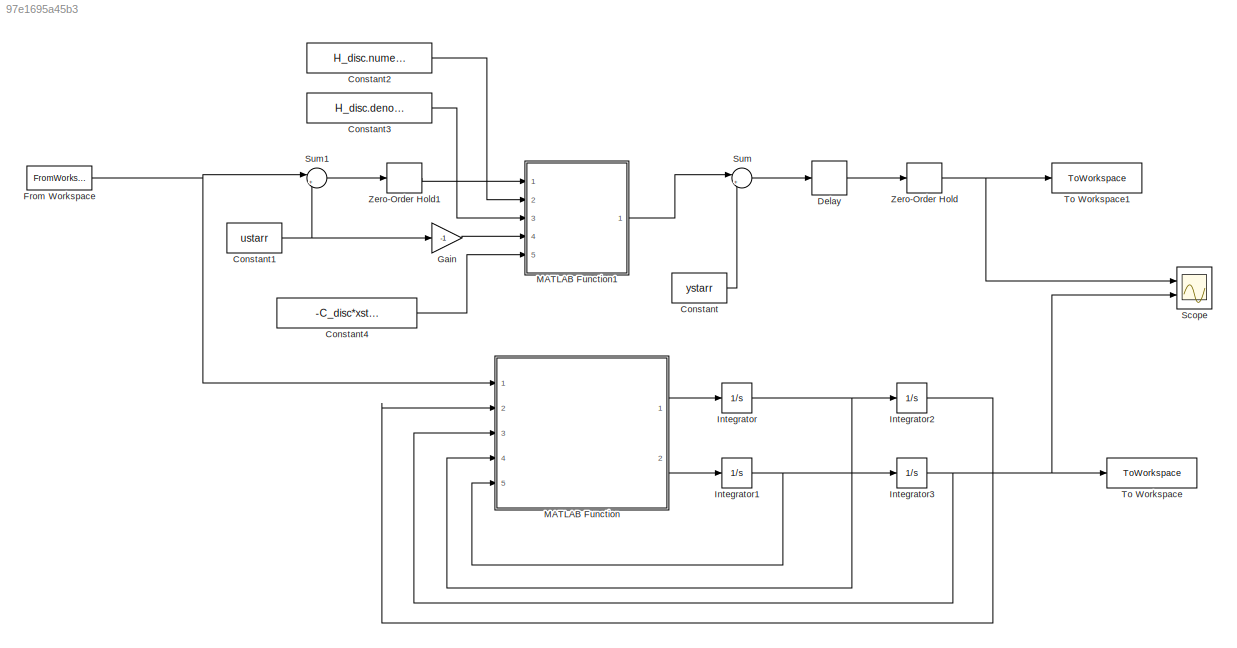
MODEL slx_97e1695a45b3
KIND model
CONFIG AbsTol = auto
CONFIG EnableMultiTasking = off
CONFIG FixedStep = auto
CONFIG MaxStep = auto
CONFIG MinStep = auto
CONFIG RelTol = 1e-3
CONFIG SampleTimeConstraint = Unconstrained
CONFIG SolverName = VariableStepAuto
CONFIG StartTime = 0.0
CONFIG StopTime = 100
BLOCK [Constant] Constant
  Value = ystarr
BLOCK [Constant] Constant1
  Value = ustarr
BLOCK [Constant] Constant2
  Value = H_disc.numerator{1,1}
BLOCK [Constant] Constant3
  Value = H_disc.denominator{1,1}
BLOCK [Constant] Constant4
  Value = -C_disc*xstarr-D_disc*ustarr
BLOCK [Delay] Delay
  DelayLength = 1
  InputPortMap = u0
  Ports = [1, 1]
  SampleTime = 0.09
BLOCK [FromWorkspace] From Workspace
  VariableName = usim
BLOCK [Gain] Gain
  Gain = -1
BLOCK [Integrator] Integrator
  Ports = [1, 1]
BLOCK [Integrator] Integrator1
  Ports = [1, 1]
BLOCK [Integrator] Integrator2
  Ports = [1, 1]
BLOCK [Integrator] Integrator3
  Ports = [1, 1]
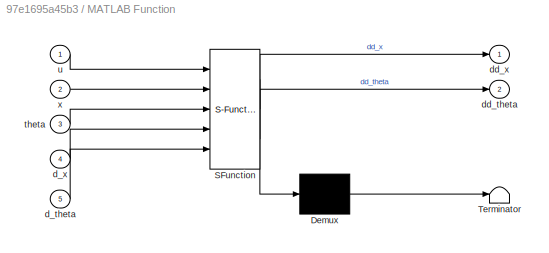
BLOCK [SubSystem] MATLAB Function
  ErrorFcn = Stateflow.Translate.translate
  PermitHierarchicalResolution = ExplicitOnly
  Ports = [5, 2]
  RequestExecContextInheritance = off
  SFBlockType = MATLAB Function
  TreatAsAtomicUnit = on
BLOCK [Demux] MATLAB Function/ Demux 
  Outputs = 1
  Ports = [1, 1]
BLOCK [S-Function] MATLAB Function/ SFunction 
  EnableBusSupport = on
  FunctionName = sf_sfun
  PortCounts = [5 3]
  Ports = [5, 3]
  SFcnIsStateOwnerBlock = off
  SFunctionDeploymentMode = off
  Tag = Stateflow S-Function 2
BLOCK [Terminator] MATLAB Function/ Terminator 
BLOCK [Inport] MATLAB Function/d_theta
  Port = 5
BLOCK [Inport] MATLAB Function/d_x
  Port = 4
BLOCK [Outport] MATLAB Function/dd_theta
  Port = 2
BLOCK [Outport] MATLAB Function/dd_x
BLOCK [Inport] MATLAB Function/theta
  Port = 3
BLOCK [Inport] MATLAB Function/u
BLOCK [Inport] MATLAB Function/x
  Port = 2
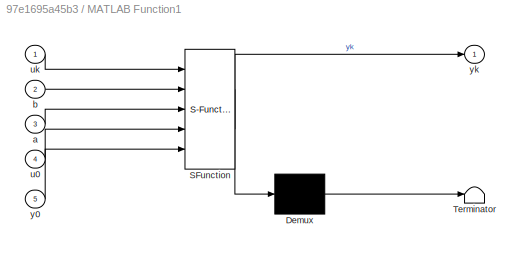
BLOCK [SubSystem] MATLAB Function1
  ErrorFcn = Stateflow.Translate.translate
  PermitHierarchicalResolution = ExplicitOnly
  Ports = [5, 1]
  RequestExecContextInheritance = off
  SFBlockType = MATLAB Function
  TreatAsAtomicUnit = on
BLOCK [Demux] MATLAB Function1/ Demux 
  Outputs = 1
  Ports = [1, 1]
BLOCK [S-Function] MATLAB Function1/ SFunction 
  EnableBusSupport = on
  FunctionName = sf_sfun
  PortCounts = [5 2]
  Ports = [5, 2]
  SFcnIsStateOwnerBlock = off
  SFunctionDeploymentMode = off
  Tag = Stateflow S-Function 1
BLOCK [Terminator] MATLAB Function1/ Terminator 
BLOCK [Inport] MATLAB Function1/a
  Port = 3
BLOCK [Inport] MATLAB Function1/b
  Port = 2
BLOCK [Inport] MATLAB Function1/u0
  Port = 4
BLOCK [Inport] MATLAB Function1/uk
BLOCK [Inport] MATLAB Function1/y0
  Port = 5
BLOCK [Outport] MATLAB Function1/yk
BLOCK [Scope] Scope
  Floating = off
  NumInputPorts = 2
  Ports = [2]
  ScopeSpecificationString = Simulink.scopes.TimeScopeBlockCfg('CurrentConfiguration', extmgr.ConfigurationSet(extmgr.Configuration('Core','General UI',true),extmgr.Configuration('Core','Source UI',true),extmgr.Configuration('Sources','WiredSimulink',true),extmgr.Configuration('Visuals','Time Domain',true,'SerializedDisplays',{struct('MinYLimReal','-0.00113','MaxYLimReal','0.00561','YLabelReal','','MinYLimMag','0.00000','MaxY...<+1395ch>
BLOCK [Sum] Sum
  Inputs = |++
  Ports = [2, 1]
BLOCK [Sum] Sum1
  Inputs = |+-
  Ports = [2, 1]
BLOCK [ToWorkspace] To Workspace
  FixptAsFi = on
  MaxDataPoints = inf
  Ports = [1]
  SampleTime = -1
  Save2DSignal = 2-D array (concatenate along first dimension)
  SaveFormat = Timeseries
  VariableName = y_nl
BLOCK [ToWorkspace] To Workspace1
  FixptAsFi = on
  MaxDataPoints = inf
  Ports = [1]
  SampleTime = -1
  Save2DSignal = 2-D array (concatenate along first dimension)
  SaveFormat = Timeseries
  VariableName = y_disc
BLOCK [ZeroOrderHold] Zero-Order Hold
  SampleTime = -1
BLOCK [ZeroOrderHold] Zero-Order Hold1
  SampleTime = -1
NET Constant1:1 -> Gain:1, Sum1:2
LINE Constant2:1 -> MATLAB Function1:2
LINE Constant3:1 -> MATLAB Function1:3
LINE Constant4:1 -> MATLAB Function1:5
LINE Constant:1 -> Sum:2
LINE Delay:1 -> Zero-Order Hold:1
NET From Workspace:1 -> MATLAB Function:1, Sum1:1
LINE Gain:1 -> MATLAB Function1:4
NET Integrator1:1 -> Integrator3:1, MATLAB Function:5
LINE Integrator2:1 -> MATLAB Function:2
NET Integrator3:1 -> MATLAB Function:3, Scope:2, To Workspace:1
NET Integrator:1 -> Integrator2:1, MATLAB Function:4
LINE MATLAB Function1:1 -> Sum:1
LINE MATLAB Function:1 -> Integrator:1
LINE MATLAB Function:2 -> Integrator1:1
LINE Sum1:1 -> Zero-Order Hold1:1
LINE Sum:1 -> Delay:1
LINE Zero-Order Hold1:1 -> MATLAB Function1:1
NET Zero-Order Hold:1 -> Scope:1, To Workspace1:1
note: NET lines group one-source signal fan-out (src -> all destinations, sorted); 1:1 wires keep LINE
CHART MATLAB Function1 states=1 transitions=1
  STATE_LABEL 'eML_blk_kernel()'
  STATE_LABEL 'SCRIPT:\nfunction yk  = fcn(uk, b, a,  u0, y0)\n\n    persistent uk1\n    persistent uk2\n    persistent uk3\n    persistent uk4\n    persistent yk1\n    persistent yk2\n    persistent yk3\n    persistent yk4\n\n    %Coeficientii numaratorului functiei de transfer discrete\n    b0 = b(1);\n    b1 = b(2);\n    b2 = b(3);\n    b3 = b(4);\n    b4 = b(5);\n\n    %Coeficientii numaratorului functiei de transfer discrete\n...<+638ch>'
CHART MATLAB Function states=1 transitions=1
  STATE_LABEL 'eML_blk_kernel()'
  STATE_LABEL 'SCRIPT:\nfunction [dd_x, dd_theta] = fcn(u, x, theta,  d_x, d_theta)\n\n    m = 1.5;          %Masa corpului\n    g = 9.81;         %Acceleratia gravitationala\n    zeta = 0.6;      %Coeficient de amortizare\n    k = 1.5;          %Constanta elastica\n    l0 = 0.5;         %Lungimea initiala a resortului\n    \n    %Ecuatiile\n    dd_x = (l0+x)*(d_theta)*(d_theta) - (k/m)*x + g*cos(theta) - zeta*d_x;\n    dd...<+100ch>'
CHART  states=0 transitions=0
CHART  states=0 transitions=0
